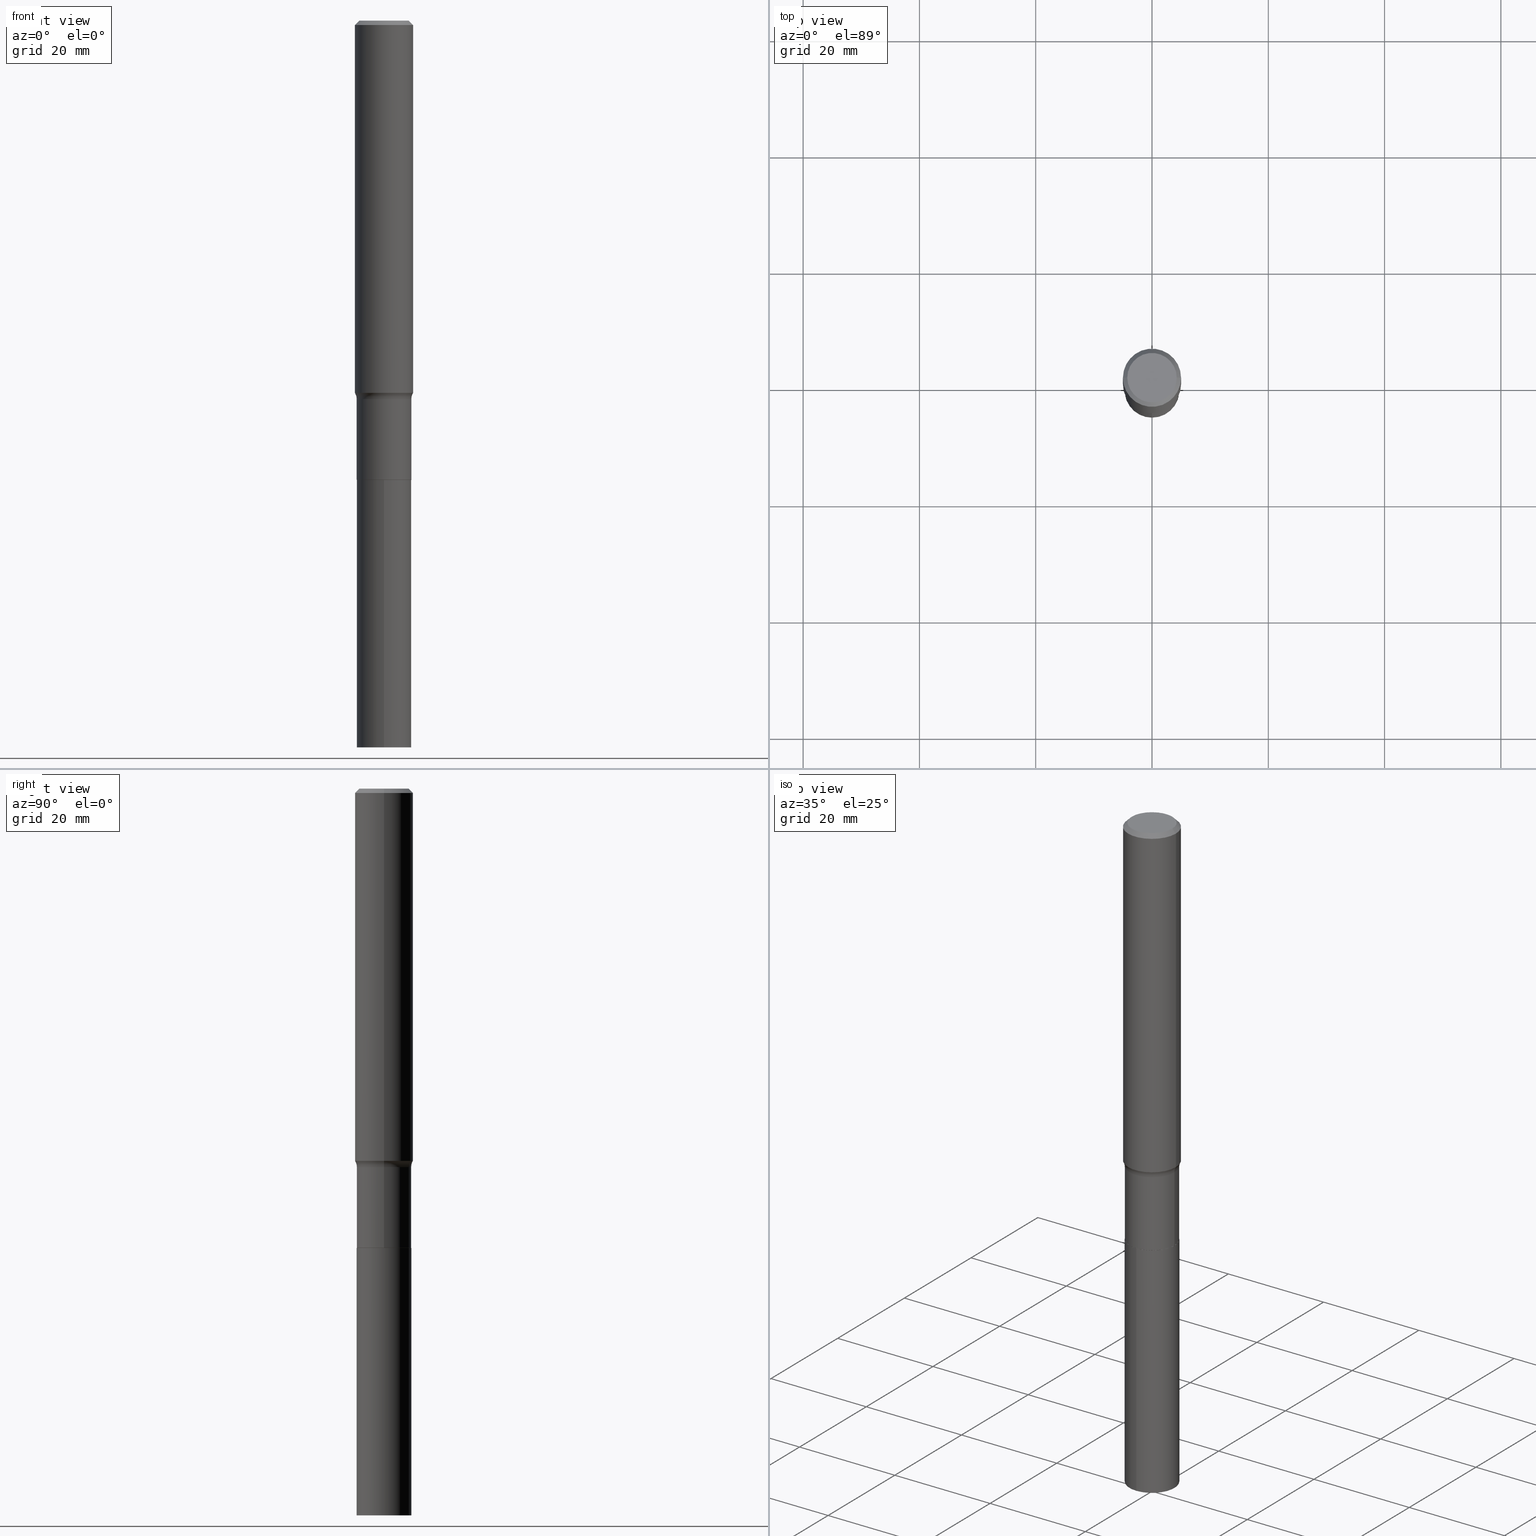
[diagram: canonical four-view strip — front | top / right | iso, engineering-drawing reading convention]
A machine part, canonical four-view strip (front | top / right | iso — engineering-drawing reading convention). The complete STEP part file that produces these views, byte-faithful:
ISO-10303-21;
HEADER;
FILE_DESCRIPTION (( 'STEP AP203' ),
    '1' );
FILE_NAME ('67882.STEP',
    '2024-04-19T16:52:42',
    ( '' ),
    ( '' ),
    'SwSTEP 2.0',
    'SolidWorks 2023',
    '' );
FILE_SCHEMA (( 'CONFIG_CONTROL_DESIGN' ));
ENDSEC;

DATA;
#1 = ORIENTED_EDGE ( 'NONE', *, *, #451, .F. ) ;
#2 = ADVANCED_FACE ( 'NONE', ( #411 ), #162, .T. ) ;
#3 = EDGE_LOOP ( 'NONE', ( #286, #272, #429, #426 ) ) ;
#4 = DIRECTION ( 'NONE',  ( -2.445468806185136597E-29, 3.491481338843145583E-15, 1.000000000000000000 ) ) ;
#5 = EDGE_CURVE ( 'NONE', #114, #391, #161, .T. ) ;
#6 = CC_DESIGN_PERSON_AND_ORGANIZATION_ASSIGNMENT ( #465, #424, ( #317 ) ) ;
#7 = CARTESIAN_POINT ( 'NONE',  ( -0.2650499999999999523, -7.064674854055068870E-15, -2.562800000000000189 ) ) ;
#8 = ORIENTED_EDGE ( 'NONE', *, *, #184, .F. ) ;
#9 = CALENDAR_DATE ( 2024, 19, 4 ) ;
#10 = ORIENTED_EDGE ( 'NONE', *, *, #288, .T. ) ;
#11 = CIRCLE ( 'NONE', #277, 0.1968500000000003303 ) ;
#12 = DIRECTION ( 'NONE',  ( 1.000000000000000000, 0.000000000000000000, 0.000000000000000000 ) ) ;
#13 = CARTESIAN_POINT ( 'NONE',  ( -0.1845499999999999363, -9.548247789358571772E-15, -3.110300000000000065 ) ) ;
#14 = VERTEX_POINT ( 'NONE', #90 ) ;
#15 = APPLICATION_PROTOCOL_DEFINITION ( 'international standard', 'config_control_design', 1994, #401 ) ;
#16 = DIRECTION ( 'NONE',  ( -2.445468806185136877E-29, 3.491481338843145188E-15, 1.000000000000000000 ) ) ;
#17 = EDGE_CURVE ( 'NONE', #449, #178, #165, .T. ) ;
#18 = APPROVAL_STATUS ( 'not_yet_approved' ) ;
#19 = ADVANCED_FACE ( 'NONE', ( #403 ), #460, .T. ) ;
#20 = DIRECTION ( 'NONE',  ( -2.445466098417616670E-29, 3.491485216520350654E-15, 1.000000000000000000 ) ) ;
#21 = CIRCLE ( 'NONE', #333, 0.1845499999999999363 ) ;
#22 = DIRECTION ( 'NONE',  ( 2.445468806185136597E-29, -3.491481338843145583E-15, -1.000000000000000000 ) ) ;
#23 = DIRECTION ( 'NONE',  ( -6.982962677686265133E-15, -1.000000000000000000, 5.905102391060282712E-15 ) ) ;
#24 = CARTESIAN_POINT ( 'NONE',  ( 7.606141627877629779E-29, -1.085955440820383503E-14, -3.110300000000000065 ) ) ;
#25 = DIRECTION ( 'NONE',  ( -2.445468806185136597E-29, 3.491481338843145583E-15, 1.000000000000000000 ) ) ;
#26 = CARTESIAN_POINT ( 'NONE',  ( 7.604918893474536978E-29, -1.085780866753441274E-14, -3.109799999999999898 ) ) ;
#27 = CARTESIAN_POINT ( 'NONE',  ( -1.292197243505767359E-15, -0.1850500000000108447, -3.110299999999999176 ) ) ;
#28 = VECTOR ( 'NONE', #16, 39.37007874015748143 ) ;
#29 = FACE_OUTER_BOUND ( 'NONE', #77, .T. ) ;
#30 = ORIENTED_EDGE ( 'NONE', *, *, #348, .F. ) ;
#31 = ADVANCED_FACE ( 'NONE', ( #372 ), #455, .F. ) ;
#32 = PERSON_AND_ORGANIZATION_ROLE ( 'classification_officer' ) ;
#33 = VERTEX_POINT ( 'NONE', #204 ) ;
#34 = CIRCLE ( 'NONE', #406, 0.1968500000000000250 ) ;
#35 = ORIENTED_EDGE ( 'NONE', *, *, #451, .T. ) ;
#36 = CC_DESIGN_APPROVAL ( #176, ( #441 ) ) ;
#37 = ORIENTED_EDGE ( 'NONE', *, *, #340, .T. ) ;
#38 = CARTESIAN_POINT ( 'NONE',  ( -1.001697619218021790E-46, 1.430158722866389718E-32, 4.096137381448108366E-18 ) ) ;
#39 = DIRECTION ( 'NONE',  ( -2.445466098417616670E-29, 3.491485216520350654E-15, 1.000000000000000000 ) ) ;
#40 = DIRECTION ( 'NONE',  ( 2.445468806185136597E-29, -3.491481338843145583E-15, -1.000000000000000000 ) ) ;
#41 = AXIS2_PLACEMENT_3D ( 'NONE', #266, #345, #228 ) ;
#42 = CARTESIAN_POINT ( 'NONE',  ( 6.267247456491268883E-29, -8.947968375187213679E-15, -2.562800000000000189 ) ) ;
#43 = EDGE_CURVE ( 'NONE', #409, #330, #428, .T. ) ;
#44 = APPROVAL_STATUS ( 'not_yet_approved' ) ;
#45 = APPROVAL ( #44, 'UNSPECIFIED' ) ;
#46 = EDGE_LOOP ( 'NONE', ( #363, #89, #458, #331 ) ) ;
#47 = AXIS2_PLACEMENT_3D ( 'NONE', #160, #39, #301 ) ;
#48 = FACE_OUTER_BOUND ( 'NONE', #187, .T. ) ;
#49 = AXIS2_PLACEMENT_3D ( 'NONE', #248, #359, #284 ) ;
#50 = DIRECTION ( 'NONE',  ( -0.7071067811865455743, 2.468850131082236945E-15, -0.7071067811865493491 ) ) ;
#51 = DIRECTION ( 'NONE',  ( -1.000000000000000000, 6.982962677686265922E-15, -4.876176775795935793E-29 ) ) ;
#52 = MECHANICAL_CONTEXT ( 'NONE', #102, 'mechanical' ) ;
#53 = CC_DESIGN_PERSON_AND_ORGANIZATION_ASSIGNMENT ( #448, #347, ( #274 ) ) ;
#54 = PLANE ( 'NONE',  #249 ) ;
#55 =( NAMED_UNIT ( * ) SI_UNIT ( $, .STERADIAN. ) SOLID_ANGLE_UNIT ( ) );
#56 = CARTESIAN_POINT ( 'NONE',  ( -0.1850499999999999923, -8.588029188836748263E-15, -3.109799999999999898 ) ) ;
#57 = AXIS2_PLACEMENT_3D ( 'NONE', #174, #358, #177 ) ;
#58 = CONICAL_SURFACE ( 'NONE', #197, 0.1845499999999999363, 0.7853981633973118326 ) ;
#59 = LINE ( 'NONE', #212, #325 ) ;
#60 = EDGE_CURVE ( 'NONE', #368, #70, #384, .T. ) ;
#61 = MANIFOLD_SOLID_BREP ( 'Body-Move/Copy2[1]', #420 ) ;
#62 = DIRECTION ( 'NONE',  ( 1.000000000000000000, -6.982962677686265922E-15, 0.000000000000000000 ) ) ;
#63 = MANIFOLD_SOLID_BREP ( 'Body-Move/Copy2[2]', #169 ) ;
#64 = DIRECTION ( 'NONE',  ( 1.000000000000000000, -6.982962677686266711E-15, 0.000000000000000000 ) ) ;
#65 = LOCAL_TIME ( 12, 52, 42.00000000000000000, #244 ) ;
#66 = CARTESIAN_POINT ( 'NONE',  ( 6.267247456491268883E-29, -8.947968375187213679E-15, -2.562800000000000189 ) ) ;
#67 = ORIENTED_EDGE ( 'NONE', *, *, #159, .T. ) ;
#68 = PERSON_AND_ORGANIZATION ( #106, #109 ) ;
#69 = ORIENTED_EDGE ( 'NONE', *, *, #131, .F. ) ;
#70 = VERTEX_POINT ( 'NONE', #312 ) ;
#71 = ADVANCED_FACE ( 'NONE', ( #209 ), #354, .T. ) ;
#72 = AXIS2_PLACEMENT_3D ( 'NONE', #398, #297, #402 ) ;
#73 = APPROVAL_PERSON_ORGANIZATION ( #349, #176, #168 ) ;
#74 = ORIENTED_EDGE ( 'NONE', *, *, #378, .F. ) ;
#75 = SHAPE_DEFINITION_REPRESENTATION ( #78, #303 ) ;
#76 = CYLINDRICAL_SURFACE ( 'NONE', #41, 0.1850499999999999923 ) ;
#77 = EDGE_LOOP ( 'NONE', ( #320, #232, #229, #198 ) ) ;
#78 = PRODUCT_DEFINITION_SHAPE ( 'NONE', 'NONE',  #441 ) ;
#79 = FACE_OUTER_BOUND ( 'NONE', #141, .T. ) ;
#80 = DIRECTION ( 'NONE',  ( 1.000000000000000000, -6.982962677686266711E-15, 4.876176775795935793E-29 ) ) ;
#81 = CARTESIAN_POINT ( 'NONE',  ( 7.220858017463206858E-31, -1.030947152326916240E-16, -0.02952750000000018207 ) ) ;
#82 = DIRECTION ( 'NONE',  ( 1.000000000000000000, -6.982962677686265133E-15, 4.883557194083112340E-29 ) ) ;
#83 = ADVANCED_FACE ( 'NONE', ( #205 ), #211, .F. ) ;
#84 = ORIENTED_EDGE ( 'NONE', *, *, #5, .F. ) ;
#85 = AXIS2_PLACEMENT_3D ( 'NONE', #42, #236, #376 ) ;
#86 = LOCAL_TIME ( 12, 52, 42.00000000000000000, #265 ) ;
#87 = PERSON_AND_ORGANIZATION ( #106, #109 ) ;
#88 = DIRECTION ( 'NONE',  ( 0.7071067811864509833, -2.468850131081245741E-15, 0.7071067811866440511 ) ) ;
#89 = ORIENTED_EDGE ( 'NONE', *, *, #17, .T. ) ;
#90 = CARTESIAN_POINT ( 'NONE',  ( 0.1850499999999999923, -1.215000591104025780E-14, -3.109799999999999898 ) ) ;
#91 = CARTESIAN_POINT ( 'NONE',  ( 0.2650499999999999523, -1.079880263290796039E-14, -2.562800000000000189 ) ) ;
#92 = CARTESIAN_POINT ( 'NONE',  ( 0.1968500000000000250, -1.453583746094017706E-15, -0.02952750000000018207 ) ) ;
#93 = VECTOR ( 'NONE', #88, 39.37007874015748143 ) ;
#94 = LOCAL_TIME ( 12, 52, 42.00000000000000000, #343 ) ;
#95 = PERSON_AND_ORGANIZATION ( #106, #109 ) ;
#96 = DIRECTION ( 'NONE',  ( -6.982962677686265133E-15, -1.000000000000000000, 5.905102391060282712E-15 ) ) ;
#97 = CARTESIAN_POINT ( 'NONE',  ( 7.604918893474536978E-29, -1.085780866753441274E-14, -3.109799999999999898 ) ) ;
#98 = DIRECTION ( 'NONE',  ( -2.445468806185136597E-29, 3.491481338843145583E-15, 1.000000000000000000 ) ) ;
#99 =( GEOMETRIC_REPRESENTATION_CONTEXT ( 3 ) GLOBAL_UNCERTAINTY_ASSIGNED_CONTEXT ( ( #263 ) ) GLOBAL_UNIT_ASSIGNED_CONTEXT ( ( #367, #227, #55 ) ) REPRESENTATION_CONTEXT ( 'NONE', 'WORKASPACE' ) );
#100 = CARTESIAN_POINT ( 'NONE',  ( -0.1968500000000003303, -7.403257612201241372E-15, -2.520981822134387151 ) ) ;
#101 = ADVANCED_FACE ( 'NONE', ( #250 ), #397, .F. ) ;
#102 = APPLICATION_CONTEXT ( 'configuration controlled 3d designs of mechanical parts and assemblies' ) ;
#103 = FACE_OUTER_BOUND ( 'NONE', #334, .T. ) ;
#104 = ORIENTED_EDGE ( 'NONE', *, *, #172, .F. ) ;
#105 = CARTESIAN_POINT ( 'NONE',  ( -8.258148853877118771E-29, -4.624340750997374733E-14, -4.921300000000000452 ) ) ;
#106 = PERSON ( 'UNSPECIFIED', 'UNSPECIFIED', 'UNSPECIFIED', ('UNSPECIFIED'), ('UNSPECIFIED'), ('UNSPECIFIED') ) ;
#107 = ADVANCED_FACE ( 'NONE', ( #103 ), #76, .T. ) ;
#108 = AXIS2_PLACEMENT_3D ( 'NONE', #270, #164, #121 ) ;
#109 = ORGANIZATION ( 'UNSPECIFIED', 'UNSPECIFIED', '' ) ;
#110 = ORIENTED_EDGE ( 'NONE', *, *, #112, .F. ) ;
#111 = APPROVAL_STATUS ( 'not_yet_approved' ) ;
#112 = EDGE_CURVE ( 'NONE', #261, #346, #442, .T. ) ;
#113 = ORIENTED_EDGE ( 'NONE', *, *, #17, .F. ) ;
#114 = VERTEX_POINT ( 'NONE', #341 ) ;
#115 = COORDINATED_UNIVERSAL_TIME_OFFSET ( 5, 0, .BEHIND. ) ;
#116 = PLANE ( 'NONE',  #72 ) ;
#117 = DESIGN_CONTEXT ( 'detailed design', #401, 'design' ) ;
#118 = CARTESIAN_POINT ( 'NONE',  ( 0.000000000000000000, 0.000000000000000000, 0.000000000000000000 ) ) ;
#119 = AXIS2_PLACEMENT_3D ( 'NONE', #464, #454, #133 ) ;
#120 = ORIENTED_EDGE ( 'NONE', *, *, #172, .T. ) ;
#121 = DIRECTION ( 'NONE',  ( 1.000000000000000000, -6.982962677686265922E-15, 0.000000000000000000 ) ) ;
#122 = DIRECTION ( 'NONE',  ( 0.7071067811865455743, -7.319954787623248157E-15, -0.7071067811865493491 ) ) ;
#123 = FACE_OUTER_BOUND ( 'NONE', #468, .T. ) ;
#124 = DIRECTION ( 'NONE',  ( -0.7071067811864509833, 7.493145998870005484E-15, 0.7071067811866440511 ) ) ;
#125 = DATE_AND_TIME ( #208, #65 ) ;
#126 = DIRECTION ( 'NONE',  ( -2.445466098417616950E-29, 3.491485216520350654E-15, 1.000000000000000000 ) ) ;
#127 = ORIENTED_EDGE ( 'NONE', *, *, #340, .F. ) ;
#128 = CIRCLE ( 'NONE', #324, 0.1673224999999999851 ) ;
#129 = AXIS2_PLACEMENT_3D ( 'NONE', #97, #425, #356 ) ;
#130 = DIRECTION ( 'NONE',  ( 1.000000000000000000, -6.982962677686267499E-15, 4.876176775795935793E-29 ) ) ;
#131 = EDGE_CURVE ( 'NONE', #185, #267, #298, .T. ) ;
#132 = CIRCLE ( 'NONE', #366, 0.1968500000000003303 ) ;
#133 = DIRECTION ( 'NONE',  ( -6.982962677686265133E-15, -1.000000000000000000, 2.952551195530141356E-15 ) ) ;
#134 = EDGE_CURVE ( 'NONE', #409, #185, #439, .T. ) ;
#135 = CARTESIAN_POINT ( 'NONE',  ( -5.008488096090108951E-47, 7.150793614331948590E-33, 2.048068690724054183E-18 ) ) ;
#136 = DIRECTION ( 'NONE',  ( -2.445466098417616389E-29, 3.491485216520350654E-15, 1.000000000000000000 ) ) ;
#137 = LINE ( 'NONE', #173, #153 ) ;
#138 = CC_DESIGN_DATE_AND_TIME_ASSIGNMENT ( #125, #407, ( #441 ) ) ;
#139 = CARTESIAN_POINT ( 'NONE',  ( -0.1850499999999999368, 1.314859332524064945E-15, -9.102489384516700747E-30 ) ) ;
#140 = CARTESIAN_POINT ( 'NONE',  ( 0.1968500000000001915, -1.374596203102542989E-15, 9.598753983154309266E-30 ) ) ;
#141 = EDGE_LOOP ( 'NONE', ( #30, #151, #336, #84 ) ) ;
#142 = CARTESIAN_POINT ( 'NONE',  ( 0.1673224999999999851, -1.300749711163072397E-15, 4.096137381456741925E-18 ) ) ;
#143 = EDGE_CURVE ( 'NONE', #261, #365, #233, .T. ) ;
#144 = ORIENTED_EDGE ( 'NONE', *, *, #134, .F. ) ;
#145 = AXIS2_PLACEMENT_3D ( 'NONE', #152, #188, #166 ) ;
#146 = ORIENTED_EDGE ( 'NONE', *, *, #258, .T. ) ;
#147 = CALENDAR_DATE ( 2024, 19, 4 ) ;
#148 = EDGE_CURVE ( 'NONE', #365, #14, #271, .T. ) ;
#149 = DIMENSIONAL_EXPONENTS ( 1.000000000000000000, 0.000000000000000000, 0.000000000000000000, 0.000000000000000000, 0.000000000000000000, 0.000000000000000000, 0.000000000000000000 ) ;
#150 = ORIENTED_EDGE ( 'NONE', *, *, #148, .T. ) ;
#151 = ORIENTED_EDGE ( 'NONE', *, *, #357, .T. ) ;
#152 = CARTESIAN_POINT ( 'NONE',  ( 0.000000000000000000, 0.000000000000000000, 0.000000000000000000 ) ) ;
#153 = VECTOR ( 'NONE', #50, 39.37007874015748854 ) ;
#154 = DIRECTION ( 'NONE',  ( 1.000000000000000000, -6.982962677686267499E-15, 4.876176775795935793E-29 ) ) ;
#155 = FACE_OUTER_BOUND ( 'NONE', #3, .T. ) ;
#156 = ADVANCED_FACE ( 'NONE', ( #235 ), #375, .T. ) ;
#157 = ORIENTED_EDGE ( 'NONE', *, *, #43, .T. ) ;
#158 = DIRECTION ( 'NONE',  ( 7.105427357601001859E-15, 1.000000000000000000, -3.491481338843145583E-15 ) ) ;
#159 = EDGE_CURVE ( 'NONE', #338, #70, #137, .T. ) ;
#160 = CARTESIAN_POINT ( 'NONE',  ( 7.606141627877629779E-29, -1.085955440820383503E-14, -3.110300000000000065 ) ) ;
#161 = CIRCLE ( 'NONE', #85, 0.1850499999999999090 ) ;
#162 = CYLINDRICAL_SURFACE ( 'NONE', #256, 0.1850499999999999368 ) ;
#163 = LOCAL_TIME ( 12, 52, 42.00000000000000000, #314 ) ;
#164 = DIRECTION ( 'NONE',  ( -2.445468806185136597E-29, 3.491481338843145583E-15, 1.000000000000000000 ) ) ;
#165 = LINE ( 'NONE', #92, #247 ) ;
#166 = DIRECTION ( 'NONE',  ( 1.000000000000000000, -6.982962677686266711E-15, 4.876176775795935793E-29 ) ) ;
#167 = CARTESIAN_POINT ( 'NONE',  ( -1.001697619218021790E-46, 1.430158722866389718E-32, 4.096137381448108366E-18 ) ) ;
#168 = APPROVAL_ROLE ( '' ) ;
#169 = CLOSED_SHELL ( 'NONE', ( #231, #71, #457, #101, #2, #213, #269, #156, #19, #31, #83, #329 ) ) ;
#170 = CARTESIAN_POINT ( 'NONE',  ( 0.1850499999999999090, -1.024016561869305716E-14, -2.562800000000000189 ) ) ;
#171 = CIRCLE ( 'NONE', #446, 0.08000000000000009881 ) ;
#172 = EDGE_CURVE ( 'NONE', #70, #178, #34, .T. ) ;
#173 = CARTESIAN_POINT ( 'NONE',  ( -0.1968500000000000250, 1.271501487869850120E-15, -0.02952750000000018207 ) ) ;
#174 = CARTESIAN_POINT ( 'NONE',  ( 7.606141627877629779E-29, -1.085955440820383503E-14, -3.110300000000000065 ) ) ;
#175 = DIRECTION ( 'NONE',  ( -6.982962677686265133E-15, -1.000000000000000000, 2.952551195530141356E-15 ) ) ;
#176 = APPROVAL ( #18, 'UNSPECIFIED' ) ;
#177 = DIRECTION ( 'NONE',  ( 1.000000000000000000, -6.982962677686265922E-15, 4.876176775795935793E-29 ) ) ;
#178 = VERTEX_POINT ( 'NONE', #275 ) ;
#179 = DIRECTION ( 'NONE',  ( 1.000000000000000000, -6.982962677686265922E-15, 0.000000000000000000 ) ) ;
#180 = DIRECTION ( 'NONE',  ( 1.000000000000000000, -6.982962677686265922E-15, 0.000000000000000000 ) ) ;
#181 = EDGE_CURVE ( 'NONE', #33, #391, #467, .T. ) ;
#182 = CARTESIAN_POINT ( 'NONE',  ( 1.203488073211193522E-28, -1.718263413532219501E-14, -4.921300000000000452 ) ) ;
#183 = DIRECTION ( 'NONE',  ( 1.000000000000000000, -6.982962677686272233E-15, 0.000000000000000000 ) ) ;
#184 = EDGE_CURVE ( 'NONE', #338, #449, #128, .T. ) ;
#185 = VERTEX_POINT ( 'NONE', #27 ) ;
#186 = DIRECTION ( 'NONE',  ( 1.000000000000000000, -6.982962677686266711E-15, 0.000000000000000000 ) ) ;
#187 = EDGE_LOOP ( 'NONE', ( #10, #195, #127, #259 ) ) ;
#188 = DIRECTION ( 'NONE',  ( -2.445468806185136597E-29, 3.491481338843145583E-15, 1.000000000000000000 ) ) ;
#189 = ORIENTED_EDGE ( 'NONE', *, *, #423, .F. ) ;
#190 = EDGE_CURVE ( 'NONE', #178, #70, #282, .T. ) ;
#191 = CIRCLE ( 'NONE', #444, 0.1673224999999999851 ) ;
#192 = AXIS2_PLACEMENT_3D ( 'NONE', #414, #353, #12 ) ;
#193 = EDGE_LOOP ( 'NONE', ( #110, #466, #150, #394 ) ) ;
#194 = DIRECTION ( 'NONE',  ( 1.000000000000000000, -6.982962677686265133E-15, 0.000000000000000000 ) ) ;
#195 = ORIENTED_EDGE ( 'NONE', *, *, #112, .T. ) ;
#196 = EDGE_CURVE ( 'NONE', #449, #338, #191, .T. ) ;
#197 = AXIS2_PLACEMENT_3D ( 'NONE', #207, #418, #62 ) ;
#198 = ORIENTED_EDGE ( 'NONE', *, *, #258, .F. ) ;
#199 = APPROVAL_ROLE ( '' ) ;
#200 = DIRECTION ( 'NONE',  ( -2.445468806185136597E-29, 3.491481338843145583E-15, 1.000000000000000000 ) ) ;
#201 = ORIENTED_EDGE ( 'NONE', *, *, #293, .T. ) ;
#202 = CARTESIAN_POINT ( 'NONE',  ( 0.000000000000000000, 0.000000000000000000, 0.000000000000000000 ) ) ;
#203 = CIRCLE ( 'NONE', #381, 0.1850499999999999923 ) ;
#204 = CARTESIAN_POINT ( 'NONE',  ( 0.1968500000000003303, -1.017655719064754629E-14, -2.520981822134387151 ) ) ;
#205 = FACE_OUTER_BOUND ( 'NONE', #294, .T. ) ;
#206 = ADVANCED_FACE ( 'NONE', ( #123 ), #116, .F. ) ;
#207 = CARTESIAN_POINT ( 'NONE',  ( 7.606141627877629779E-29, -1.085955440820383503E-14, -3.110300000000000065 ) ) ;
#208 = CALENDAR_DATE ( 2024, 19, 4 ) ;
#209 = FACE_OUTER_BOUND ( 'NONE', #46, .T. ) ;
#210 = LINE ( 'NONE', #388, #461 ) ;
#211 = PLANE ( 'NONE',  #57 ) ;
#212 = CARTESIAN_POINT ( 'NONE',  ( 1.314859332524141070E-15, 0.1850499999999891121, -3.110300000000000509 ) ) ;
#213 = ADVANCED_FACE ( 'NONE', ( #79 ), #268, .T. ) ;
#214 = DIRECTION ( 'NONE',  ( -2.445468806185136877E-29, 3.491481338843145188E-15, 1.000000000000000000 ) ) ;
#215 = CYLINDRICAL_SURFACE ( 'NONE', #119, 0.1850499999999999923 ) ;
#216 = AXIS2_PLACEMENT_3D ( 'NONE', #337, #322, #302 ) ;
#217 = SECURITY_CLASSIFICATION ( '', '', #253 ) ;
#218 = EDGE_LOOP ( 'NONE', ( #113, #8, #67, #120 ) ) ;
#219 = ORIENTED_EDGE ( 'NONE', *, *, #288, .F. ) ;
#220 = DATE_AND_TIME ( #260, #86 ) ;
#221 = ORIENTED_EDGE ( 'NONE', *, *, #237, .T. ) ;
#222 = CC_DESIGN_PERSON_AND_ORGANIZATION_ASSIGNMENT ( #95, #307, ( #441 ) ) ;
#223 = CC_DESIGN_APPROVAL ( #351, ( #217 ) ) ;
#224 = ORIENTED_EDGE ( 'NONE', *, *, #423, .T. ) ;
#225 = DATE_AND_TIME ( #147, #291 ) ;
#226 = DIRECTION ( 'NONE',  ( 1.000000000000000000, -6.982962677686267499E-15, 4.876294436782262290E-29 ) ) ;
#227 =( NAMED_UNIT ( * ) PLANE_ANGLE_UNIT ( ) SI_UNIT ( $, .RADIAN. ) );
#228 = DIRECTION ( 'NONE',  ( -6.982962677686265133E-15, -1.000000000000000000, 2.952551195530141356E-15 ) ) ;
#229 = ORIENTED_EDGE ( 'NONE', *, *, #134, .T. ) ;
#230 = CARTESIAN_POINT ( 'NONE',  ( 0.000000000000000000, 0.000000000000000000, 0.000000000000000000 ) ) ;
#231 = ADVANCED_FACE ( 'NONE', ( #48 ), #430, .T. ) ;
#232 = ORIENTED_EDGE ( 'NONE', *, *, #378, .T. ) ;
#233 = CIRCLE ( 'NONE', #108, 0.1845499999999999363 ) ;
#234 = CIRCLE ( 'NONE', #421, 0.1850499999999999923 ) ;
#235 = FACE_OUTER_BOUND ( 'NONE', #395, .T. ) ;
#236 = DIRECTION ( 'NONE',  ( -2.445468806185136597E-29, 3.491481338843145583E-15, 1.000000000000000000 ) ) ;
#237 = EDGE_CURVE ( 'NONE', #368, #114, #171, .T. ) ;
#238 = PERSON_AND_ORGANIZATION ( #106, #109 ) ;
#239 = DIRECTION ( 'NONE',  ( -6.982962677686266711E-15, -1.000000000000000000, 3.491481338843145583E-15 ) ) ;
#240 = VECTOR ( 'NONE', #126, 39.37007874015748143 ) ;
#241 = VECTOR ( 'NONE', #462, 39.37007874015748143 ) ;
#242 = EDGE_CURVE ( 'NONE', #330, #267, #59, .T. ) ;
#243 = CARTESIAN_POINT ( 'NONE',  ( 7.220858017463206858E-31, -1.030947152326916240E-16, -0.02952750000000018207 ) ) ;
#244 = COORDINATED_UNIVERSAL_TIME_OFFSET ( 5, 0, .BEHIND. ) ;
#245 = FACE_OUTER_BOUND ( 'NONE', #193, .T. ) ;
#246 = DIRECTION ( 'NONE',  ( 2.438088387897960049E-29, -3.491481338843145188E-15, -1.000000000000000000 ) ) ;
#247 = VECTOR ( 'NONE', #122, 39.37007874015748854 ) ;
#248 = CARTESIAN_POINT ( 'NONE',  ( 6.267247456491268883E-29, -8.947968375187213679E-15, -2.562800000000000189 ) ) ;
#249 = AXIS2_PLACEMENT_3D ( 'NONE', #105, #136, #285 ) ;
#250 = FACE_OUTER_BOUND ( 'NONE', #289, .T. ) ;
#251 = LINE ( 'NONE', #140, #392 ) ;
#252 = CARTESIAN_POINT ( 'NONE',  ( 1.203488073211193522E-28, -1.718263413532219501E-14, -4.921300000000000452 ) ) ;
#253 = SECURITY_CLASSIFICATION_LEVEL ( 'unclassified' ) ;
#254 = ORIENTED_EDGE ( 'NONE', *, *, #196, .T. ) ;
#255 = DIRECTION ( 'NONE',  ( -2.445468806185136877E-29, 3.491481338843145188E-15, 1.000000000000000000 ) ) ;
#256 = AXIS2_PLACEMENT_3D ( 'NONE', #202, #310, #154 ) ;
#257 = CIRCLE ( 'NONE', #129, 0.1850499999999999923 ) ;
#258 = EDGE_CURVE ( 'NONE', #267, #185, #234, .T. ) ;
#259 = ORIENTED_EDGE ( 'NONE', *, *, #148, .F. ) ;
#260 = CALENDAR_DATE ( 2024, 19, 4 ) ;
#261 = VERTEX_POINT ( 'NONE', #281 ) ;
#262 = APPROVAL_ROLE ( '' ) ;
#263 = UNCERTAINTY_MEASURE_WITH_UNIT (LENGTH_MEASURE( 1.000000000000000082E-05 ), #367, 'distance_accuracy_value', 'NONE');
#264 = ORIENTED_EDGE ( 'NONE', *, *, #342, .F. ) ;
#265 = COORDINATED_UNIVERSAL_TIME_OFFSET ( 5, 0, .BEHIND. ) ;
#266 = CARTESIAN_POINT ( 'NONE',  ( 7.606141627877629779E-29, -1.085955440820383503E-14, -3.110300000000000065 ) ) ;
#267 = VERTEX_POINT ( 'NONE', #422 ) ;
#268 = CYLINDRICAL_SURFACE ( 'NONE', #309, 0.1850499999999999368 ) ;
#269 = ADVANCED_FACE ( 'NONE', ( #326 ), #273, .F. ) ;
#270 = CARTESIAN_POINT ( 'NONE',  ( 7.606141627877629779E-29, -1.085955440820383503E-14, -3.110300000000000065 ) ) ;
#271 = LINE ( 'NONE', #404, #93 ) ;
#272 = ORIENTED_EDGE ( 'NONE', *, *, #60, .T. ) ;
#273 = TOROIDAL_SURFACE ( 'NONE', #49, 0.2650499999999999523, 0.08000000000000007105 ) ;
#274 = PRODUCT ( '67882', '67882', '', ( #52 ) ) ;
#275 = CARTESIAN_POINT ( 'NONE',  ( 0.1968500000000000250, -1.477690918335233294E-15, -0.02952750000000018207 ) ) ;
#276 = AXIS2_PLACEMENT_3D ( 'NONE', #118, #200, #80 ) ;
#277 = AXIS2_PLACEMENT_3D ( 'NONE', #385, #321, #186 ) ;
#278 = DIRECTION ( 'NONE',  ( 1.000000000000000000, -6.982962677686265922E-15, 0.000000000000000000 ) ) ;
#279 = DATE_AND_TIME ( #452, #163 ) ;
#280 = CARTESIAN_POINT ( 'NONE',  ( 6.267247456491268883E-29, -8.947968375187213679E-15, -2.562800000000000189 ) ) ;
#281 = CARTESIAN_POINT ( 'NONE',  ( -0.1845499999999999363, -9.545598562184459782E-15, -3.110300000000000065 ) ) ;
#282 = CIRCLE ( 'NONE', #216, 0.1968500000000000250 ) ;
#283 = AXIS2_PLACEMENT_3D ( 'NONE', #280, #417, #194 ) ;
#284 = DIRECTION ( 'NONE',  ( 1.000000000000000000, -6.982962677686265133E-15, 4.883557194083112340E-29 ) ) ;
#285 = DIRECTION ( 'NONE',  ( -6.982962677686265922E-15, -1.000000000000000000, 3.491485216520350654E-15 ) ) ;
#286 = ORIENTED_EDGE ( 'NONE', *, *, #342, .T. ) ;
#287 = CARTESIAN_POINT ( 'NONE',  ( -1.292197243505722986E-15, -0.1850500000000171730, -4.921299999999999564 ) ) ;
#288 = EDGE_CURVE ( 'NONE', #365, #261, #21, .T. ) ;
#289 = EDGE_LOOP ( 'NONE', ( #189, #221, #327, #434 ) ) ;
#290 = DATE_TIME_ROLE ( 'classification_date' ) ;
#291 = LOCAL_TIME ( 12, 52, 42.00000000000000000, #115 ) ;
#292 = ORIENTED_EDGE ( 'NONE', *, *, #143, .F. ) ;
#293 = EDGE_CURVE ( 'NONE', #33, #178, #251, .T. ) ;
#294 = EDGE_LOOP ( 'NONE', ( #219, #292 ) ) ;
#295 = ORIENTED_EDGE ( 'NONE', *, *, #43, .F. ) ;
#296 = ADVANCED_FACE ( 'NONE', ( #328 ), #54, .F. ) ;
#297 = DIRECTION ( 'NONE',  ( 2.445466098417616389E-29, -3.491485216520350654E-15, -1.000000000000000000 ) ) ;
#298 = CIRCLE ( 'NONE', #47, 0.1850499999999999923 ) ;
#299 = APPROVAL_DATE_TIME ( #220, #351 ) ;
#300 = CIRCLE ( 'NONE', #453, 0.1850499999999999923 ) ;
#301 = DIRECTION ( 'NONE',  ( -6.982962677686265133E-15, -1.000000000000000000, 2.952551195530141356E-15 ) ) ;
#302 = DIRECTION ( 'NONE',  ( 1.000000000000000000, -6.982962677686265922E-15, 0.000000000000000000 ) ) ;
#303 = ADVANCED_BREP_SHAPE_REPRESENTATION ( '67882', ( #61, #63, #192 ), #99 ) ;
#304 = DIRECTION ( 'NONE',  ( -1.000000000000000000, 6.982962677686265922E-15, 0.000000000000000000 ) ) ;
#305 = DIRECTION ( 'NONE',  ( -1.000000000000000000, 7.105427357601001859E-15, 0.000000000000000000 ) ) ;
#306 = CARTESIAN_POINT ( 'NONE',  ( -1.292197243505767359E-15, -0.1850500000000108447, -3.110299999999999176 ) ) ;
#307 = PERSON_AND_ORGANIZATION_ROLE ( 'creator' ) ;
#308 = EDGE_CURVE ( 'NONE', #14, #391, #210, .T. ) ;
#309 = AXIS2_PLACEMENT_3D ( 'NONE', #230, #339, #130 ) ;
#310 = DIRECTION ( 'NONE',  ( -2.445468806185136597E-29, 3.491481338843145583E-15, 1.000000000000000000 ) ) ;
#311 = DIRECTION ( 'NONE',  ( -2.445468806185136597E-29, 3.491481338843145583E-15, 1.000000000000000000 ) ) ;
#312 = CARTESIAN_POINT ( 'NONE',  ( -0.1968500000000000250, -3.053824476045086846E-15, -0.02952750000000018207 ) ) ;
#313 = CARTESIAN_POINT ( 'NONE',  ( 7.606141627877629779E-29, -1.085955440820383503E-14, -3.110300000000000065 ) ) ;
#314 = COORDINATED_UNIVERSAL_TIME_OFFSET ( 5, 0, .BEHIND. ) ;
#315 = AXIS2_PLACEMENT_3D ( 'NONE', #243, #22, #350 ) ;
#316 = DIRECTION ( 'NONE',  ( -2.445466098417616670E-29, 3.491485216520350654E-15, 1.000000000000000000 ) ) ;
#317 = PRODUCT_DEFINITION_FORMATION_WITH_SPECIFIED_SOURCE ( 'ANY', '', #274, .NOT_KNOWN. ) ;
#318 = CARTESIAN_POINT ( 'NONE',  ( 6.164982406989410044E-29, -8.801960987545001526E-15, -2.520981822134387151 ) ) ;
#319 = DIRECTION ( 'NONE',  ( -2.445468806185136597E-29, 3.491481338843145583E-15, 1.000000000000000000 ) ) ;
#320 = ORIENTED_EDGE ( 'NONE', *, *, #242, .F. ) ;
#321 = DIRECTION ( 'NONE',  ( -2.445468806185136597E-29, 3.491481338843145583E-15, 1.000000000000000000 ) ) ;
#322 = DIRECTION ( 'NONE',  ( -2.445468806185136597E-29, 3.491481338843145583E-15, 1.000000000000000000 ) ) ;
#323 = CARTESIAN_POINT ( 'NONE',  ( -0.1968500000000001915, 1.398703375343758577E-15, -9.682923725166790684E-30 ) ) ;
#324 = AXIS2_PLACEMENT_3D ( 'NONE', #167, #311, #226 ) ;
#325 = VECTOR ( 'NONE', #459, 39.37007874015748143 ) ;
#326 = FACE_OUTER_BOUND ( 'NONE', #447, .T. ) ;
#327 = ORIENTED_EDGE ( 'NONE', *, *, #5, .T. ) ;
#328 = FACE_OUTER_BOUND ( 'NONE', #371, .T. ) ;
#329 = ADVANCED_FACE ( 'NONE', ( #245 ), #58, .T. ) ;
#330 = VERTEX_POINT ( 'NONE', #386 ) ;
#331 = ORIENTED_EDGE ( 'NONE', *, *, #159, .F. ) ;
#332 = AXIS2_PLACEMENT_3D ( 'NONE', #91, #239, #382 ) ;
#333 = AXIS2_PLACEMENT_3D ( 'NONE', #24, #319, #179 ) ;
#334 = EDGE_LOOP ( 'NONE', ( #157, #400, #69, #144 ) ) ;
#335 =( LENGTH_UNIT ( ) NAMED_UNIT ( * ) SI_UNIT ( $, .METRE. ) );
#336 = ORIENTED_EDGE ( 'NONE', *, *, #308, .T. ) ;
#337 = CARTESIAN_POINT ( 'NONE',  ( 7.220858017463206858E-31, -1.030947152326916240E-16, -0.02952750000000018207 ) ) ;
#338 = VERTEX_POINT ( 'NONE', #360 ) ;
#339 = DIRECTION ( 'NONE',  ( -2.445468806185136597E-29, 3.491481338843145583E-15, 1.000000000000000000 ) ) ;
#340 = EDGE_CURVE ( 'NONE', #14, #346, #300, .T. ) ;
#341 = CARTESIAN_POINT ( 'NONE',  ( -0.1850499999999999090, -8.588029188836748263E-15, -2.562800000000000189 ) ) ;
#342 = EDGE_CURVE ( 'NONE', #33, #368, #11, .T. ) ;
#343 = COORDINATED_UNIVERSAL_TIME_OFFSET ( 5, 0, .BEHIND. ) ;
#344 = APPROVAL_PERSON_ORGANIZATION ( #87, #45, #199 ) ;
#345 = DIRECTION ( 'NONE',  ( -2.445466098417616670E-29, 3.491485216520350654E-15, 1.000000000000000000 ) ) ;
#346 = VERTEX_POINT ( 'NONE', #56 ) ;
#347 = PERSON_AND_ORGANIZATION_ROLE ( 'design_owner' ) ;
#348 = EDGE_CURVE ( 'NONE', #346, #114, #352, .T. ) ;
#349 = PERSON_AND_ORGANIZATION ( #106, #109 ) ;
#350 = DIRECTION ( 'NONE',  ( -1.000000000000000000, 6.982962677686265922E-15, 0.000000000000000000 ) ) ;
#351 = APPROVAL ( #111, 'UNSPECIFIED' ) ;
#352 = LINE ( 'NONE', #139, #241 ) ;
#353 = DIRECTION ( 'NONE',  ( 0.000000000000000000, 0.000000000000000000, 1.000000000000000000 ) ) ;
#354 = CONICAL_SURFACE ( 'NONE', #315, 0.1968500000000000250, 0.7853981633974456145 ) ;
#355 = APPROVAL_PERSON_ORGANIZATION ( #370, #351, #262 ) ;
#356 = DIRECTION ( 'NONE',  ( 1.000000000000000000, -6.982962677686272233E-15, 0.000000000000000000 ) ) ;
#357 = EDGE_CURVE ( 'NONE', #346, #14, #257, .T. ) ;
#358 = DIRECTION ( 'NONE',  ( -2.438088387897960049E-29, 3.491481338843145188E-15, 1.000000000000000000 ) ) ;
#359 = DIRECTION ( 'NONE',  ( -2.445468806185136597E-29, 3.491481338843145583E-15, 1.000000000000000000 ) ) ;
#360 = CARTESIAN_POINT ( 'NONE',  ( -0.1673224999999999851, 1.219954130253505263E-15, 4.096137381439757534E-18 ) ) ;
#361 = AXIS2_PLACEMENT_3D ( 'NONE', #313, #450, #278 ) ;
#362 = CARTESIAN_POINT ( 'NONE',  ( 7.606141627877629779E-29, -1.085955440820383503E-14, -3.110300000000000065 ) ) ;
#363 = ORIENTED_EDGE ( 'NONE', *, *, #196, .F. ) ;
#364 = ORIENTED_EDGE ( 'NONE', *, *, #348, .T. ) ;
#365 = VERTEX_POINT ( 'NONE', #427 ) ;
#366 = AXIS2_PLACEMENT_3D ( 'NONE', #318, #390, #64 ) ;
#367 =( CONVERSION_BASED_UNIT ( 'INCH', #433 ) LENGTH_UNIT ( ) NAMED_UNIT ( #149 ) );
#368 = VERTEX_POINT ( 'NONE', #100 ) ;
#369 = CYLINDRICAL_SURFACE ( 'NONE', #145, 0.1968500000000001915 ) ;
#370 = PERSON_AND_ORGANIZATION ( #106, #109 ) ;
#371 = EDGE_LOOP ( 'NONE', ( #295, #74 ) ) ;
#372 = FACE_OUTER_BOUND ( 'NONE', #432, .T. ) ;
#373 = AXIS2_PLACEMENT_3D ( 'NONE', #135, #246, #51 ) ;
#374 = CC_DESIGN_APPROVAL ( #45, ( #317 ) ) ;
#375 = CYLINDRICAL_SURFACE ( 'NONE', #276, 0.1968500000000001915 ) ;
#376 = DIRECTION ( 'NONE',  ( 1.000000000000000000, -6.982962677686265133E-15, 0.000000000000000000 ) ) ;
#377 = CC_DESIGN_PERSON_AND_ORGANIZATION_ASSIGNMENT ( #68, #32, ( #217 ) ) ;
#378 = EDGE_CURVE ( 'NONE', #330, #409, #203, .T. ) ;
#379 = PERSON_AND_ORGANIZATION_ROLE ( 'creator' ) ;
#380 = AXIS2_PLACEMENT_3D ( 'NONE', #66, #399, #82 ) ;
#381 = AXIS2_PLACEMENT_3D ( 'NONE', #252, #20, #23 ) ;
#382 = DIRECTION ( 'NONE',  ( 1.000000000000000000, -6.982962677686275388E-15, 0.000000000000000000 ) ) ;
#383 = APPLICATION_PROTOCOL_DEFINITION ( 'international standard', 'config_control_design', 1994, #102 ) ;
#384 = LINE ( 'NONE', #323, #28 ) ;
#385 = CARTESIAN_POINT ( 'NONE',  ( 6.164982406989410044E-29, -8.801960987545001526E-15, -2.520981822134387151 ) ) ;
#386 = CARTESIAN_POINT ( 'NONE',  ( 1.314859332524163355E-15, 0.1850499999999828116, -4.921300000000002228 ) ) ;
#387 = CARTESIAN_POINT ( 'NONE',  ( 7.220858017463206858E-31, -1.030947152326916240E-16, -0.02952750000000018207 ) ) ;
#388 = CARTESIAN_POINT ( 'NONE',  ( 0.1850499999999999368, -1.292197243505843287E-15, 9.023365123610376264E-30 ) ) ;
#389 = DIRECTION ( 'NONE',  ( 1.000000000000000000, -6.982962677686267499E-15, 4.876294436782262290E-29 ) ) ;
#390 = DIRECTION ( 'NONE',  ( -2.445468806185136597E-29, 3.491481338843145583E-15, 1.000000000000000000 ) ) ;
#391 = VERTEX_POINT ( 'NONE', #170 ) ;
#392 = VECTOR ( 'NONE', #255, 39.37007874015748143 ) ;
#393 = CC_DESIGN_PERSON_AND_ORGANIZATION_ASSIGNMENT ( #238, #379, ( #317 ) ) ;
#394 = ORIENTED_EDGE ( 'NONE', *, *, #357, .F. ) ;
#395 = EDGE_LOOP ( 'NONE', ( #436, #224, #201, #104 ) ) ;
#396 = ORIENTED_EDGE ( 'NONE', *, *, #131, .T. ) ;
#397 = TOROIDAL_SURFACE ( 'NONE', #380, 0.2650499999999999523, 0.08000000000000007105 ) ;
#398 = CARTESIAN_POINT ( 'NONE',  ( 7.606141627877629779E-29, -1.085955440820383503E-14, -3.110300000000000065 ) ) ;
#399 = DIRECTION ( 'NONE',  ( -2.445468806185136597E-29, 3.491481338843145583E-15, 1.000000000000000000 ) ) ;
#400 = ORIENTED_EDGE ( 'NONE', *, *, #242, .T. ) ;
#401 = APPLICATION_CONTEXT ( 'configuration controlled 3d designs of mechanical parts and assemblies' ) ;
#402 = DIRECTION ( 'NONE',  ( 6.982962677686265922E-15, 1.000000000000000000, -3.491485216520350654E-15 ) ) ;
#403 = FACE_OUTER_BOUND ( 'NONE', #218, .T. ) ;
#404 = CARTESIAN_POINT ( 'NONE',  ( 0.1845499999999999363, -1.214826017037083551E-14, -3.110300000000000065 ) ) ;
#405 = ORIENTED_EDGE ( 'NONE', *, *, #181, .T. ) ;
#406 = AXIS2_PLACEMENT_3D ( 'NONE', #387, #25, #180 ) ;
#407 = DATE_TIME_ROLE ( 'creation_date' ) ;
#408 = CC_DESIGN_SECURITY_CLASSIFICATION ( #217, ( #317 ) ) ;
#409 = VERTEX_POINT ( 'NONE', #287 ) ;
#410 = APPROVAL_DATE_TIME ( #445, #45 ) ;
#411 = FACE_OUTER_BOUND ( 'NONE', #463, .T. ) ;
#412 = ORIENTED_EDGE ( 'NONE', *, *, #308, .F. ) ;
#413 = CC_DESIGN_DATE_AND_TIME_ASSIGNMENT ( #225, #290, ( #217 ) ) ;
#414 = CARTESIAN_POINT ( 'NONE',  ( 0.000000000000000000, 0.000000000000000000, 0.000000000000000000 ) ) ;
#415 = AXIS2_PLACEMENT_3D ( 'NONE', #81, #40, #304 ) ;
#416 = APPROVAL_DATE_TIME ( #279, #176 ) ;
#417 = DIRECTION ( 'NONE',  ( -2.445468806185136597E-29, 3.491481338843145583E-15, 1.000000000000000000 ) ) ;
#418 = DIRECTION ( 'NONE',  ( -2.445468806185136597E-29, 3.491481338843145583E-15, 1.000000000000000000 ) ) ;
#419 = AXIS2_PLACEMENT_3D ( 'NONE', #182, #316, #96 ) ;
#420 = CLOSED_SHELL ( 'NONE', ( #107, #296, #431, #206 ) ) ;
#421 = AXIS2_PLACEMENT_3D ( 'NONE', #362, #456, #175 ) ;
#422 = CARTESIAN_POINT ( 'NONE',  ( 1.314859332524185443E-15, 0.1850499999999890843, -3.110300000000000509 ) ) ;
#423 = EDGE_CURVE ( 'NONE', #368, #33, #132, .T. ) ;
#424 = PERSON_AND_ORGANIZATION_ROLE ( 'design_supplier' ) ;
#425 = DIRECTION ( 'NONE',  ( -2.445468806185136597E-29, 3.491481338843145583E-15, 1.000000000000000000 ) ) ;
#426 = ORIENTED_EDGE ( 'NONE', *, *, #293, .F. ) ;
#427 = CARTESIAN_POINT ( 'NONE',  ( 0.1845499999999999363, -1.214826017037083551E-14, -3.110300000000000065 ) ) ;
#428 = CIRCLE ( 'NONE', #419, 0.1850499999999999923 ) ;
#429 = ORIENTED_EDGE ( 'NONE', *, *, #190, .F. ) ;
#430 = CONICAL_SURFACE ( 'NONE', #361, 0.1845499999999999363, 0.7853981633973118326 ) ;
#431 = ADVANCED_FACE ( 'NONE', ( #29 ), #215, .T. ) ;
#432 = EDGE_LOOP ( 'NONE', ( #443, #254 ) ) ;
#433 = LENGTH_MEASURE_WITH_UNIT ( LENGTH_MEASURE( 0.02539999999999999897 ), #335 );
#434 = ORIENTED_EDGE ( 'NONE', *, *, #181, .F. ) ;
#435 = PRODUCT_RELATED_PRODUCT_CATEGORY ( 'detail', '', ( #274 ) ) ;
#436 = ORIENTED_EDGE ( 'NONE', *, *, #60, .F. ) ;
#437 = VECTOR ( 'NONE', #124, 39.37007874015748143 ) ;
#438 = CIRCLE ( 'NONE', #283, 0.1850499999999999090 ) ;
#439 = LINE ( 'NONE', #306, #240 ) ;
#440 = ORIENTED_EDGE ( 'NONE', *, *, #237, .F. ) ;
#441 = PRODUCT_DEFINITION ( 'UNKNOWN', '', #317, #117 ) ;
#442 = LINE ( 'NONE', #13, #437 ) ;
#443 = ORIENTED_EDGE ( 'NONE', *, *, #184, .T. ) ;
#444 = AXIS2_PLACEMENT_3D ( 'NONE', #38, #4, #389 ) ;
#445 = DATE_AND_TIME ( #9, #94 ) ;
#446 = AXIS2_PLACEMENT_3D ( 'NONE', #7, #158, #305 ) ;
#447 = EDGE_LOOP ( 'NONE', ( #440, #264, #405, #35 ) ) ;
#448 = PERSON_AND_ORGANIZATION ( #106, #109 ) ;
#449 = VERTEX_POINT ( 'NONE', #142 ) ;
#450 = DIRECTION ( 'NONE',  ( -2.445468806185136597E-29, 3.491481338843145583E-15, 1.000000000000000000 ) ) ;
#451 = EDGE_CURVE ( 'NONE', #391, #114, #438, .T. ) ;
#452 = CALENDAR_DATE ( 2024, 19, 4 ) ;
#453 = AXIS2_PLACEMENT_3D ( 'NONE', #26, #98, #183 ) ;
#454 = DIRECTION ( 'NONE',  ( -2.445466098417616670E-29, 3.491485216520350654E-15, 1.000000000000000000 ) ) ;
#455 = PLANE ( 'NONE',  #373 ) ;
#456 = DIRECTION ( 'NONE',  ( -2.445466098417616670E-29, 3.491485216520350654E-15, 1.000000000000000000 ) ) ;
#457 = ADVANCED_FACE ( 'NONE', ( #155 ), #369, .T. ) ;
#458 = ORIENTED_EDGE ( 'NONE', *, *, #190, .T. ) ;
#459 = DIRECTION ( 'NONE',  ( -2.445466098417616950E-29, 3.491485216520350654E-15, 1.000000000000000000 ) ) ;
#460 = CONICAL_SURFACE ( 'NONE', #415, 0.1968500000000000250, 0.7853981633974456145 ) ;
#461 = VECTOR ( 'NONE', #214, 39.37007874015748143 ) ;
#462 = DIRECTION ( 'NONE',  ( -2.445468806185136877E-29, 3.491481338843145188E-15, 1.000000000000000000 ) ) ;
#463 = EDGE_LOOP ( 'NONE', ( #37, #364, #1, #412 ) ) ;
#464 = CARTESIAN_POINT ( 'NONE',  ( 7.606141627877629779E-29, -1.085955440820383503E-14, -3.110300000000000065 ) ) ;
#465 = PERSON_AND_ORGANIZATION ( #106, #109 ) ;
#466 = ORIENTED_EDGE ( 'NONE', *, *, #143, .T. ) ;
#467 = CIRCLE ( 'NONE', #332, 0.08000000000000009881 ) ;
#468 = EDGE_LOOP ( 'NONE', ( #396, #146 ) ) ;
ENDSEC;
END-ISO-10303-21;
